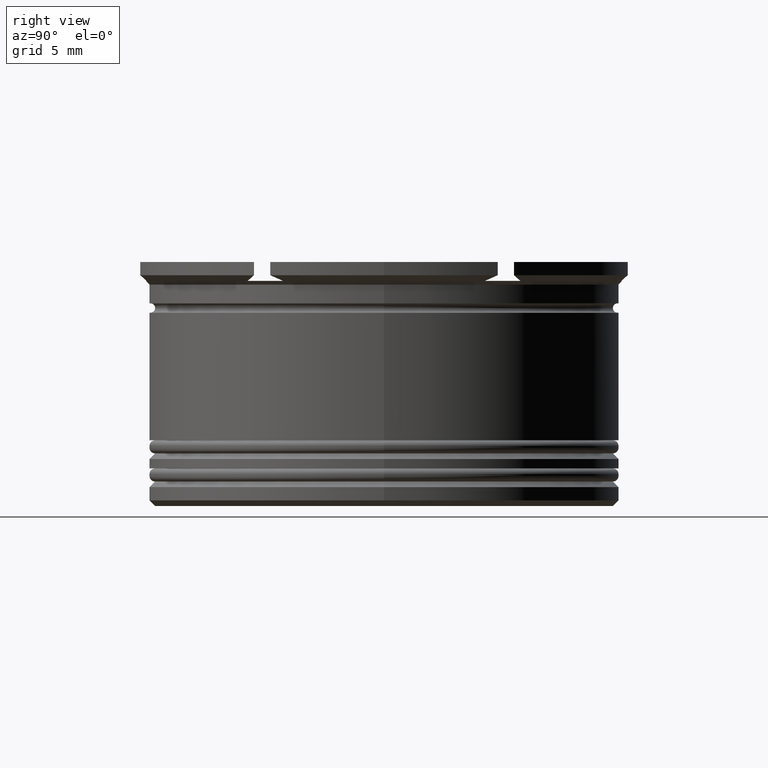
[diagram: clean part render]
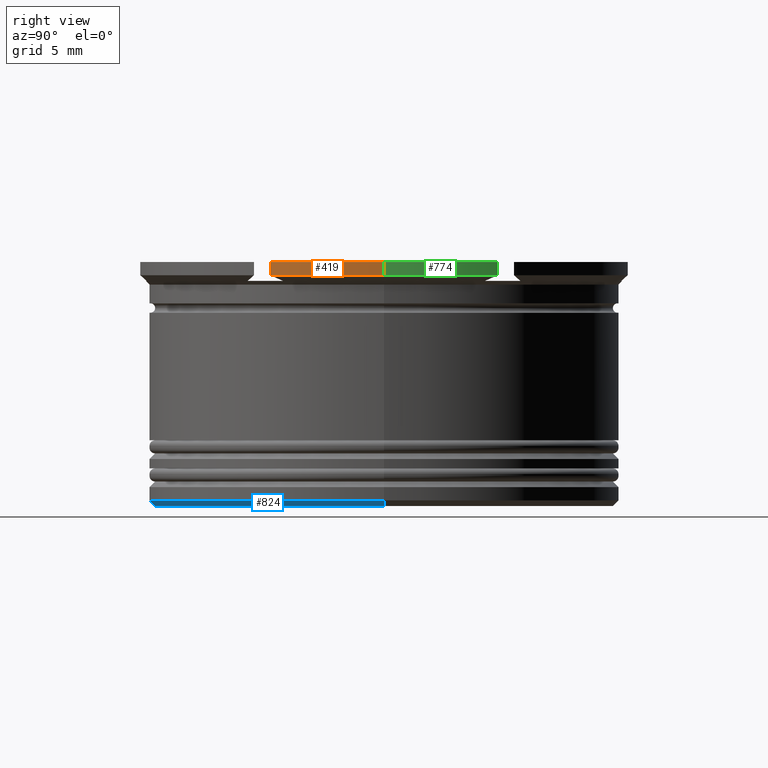
[diagram: same view with three faces highlighted in distinct colors, each labeled with its STEP entity id]
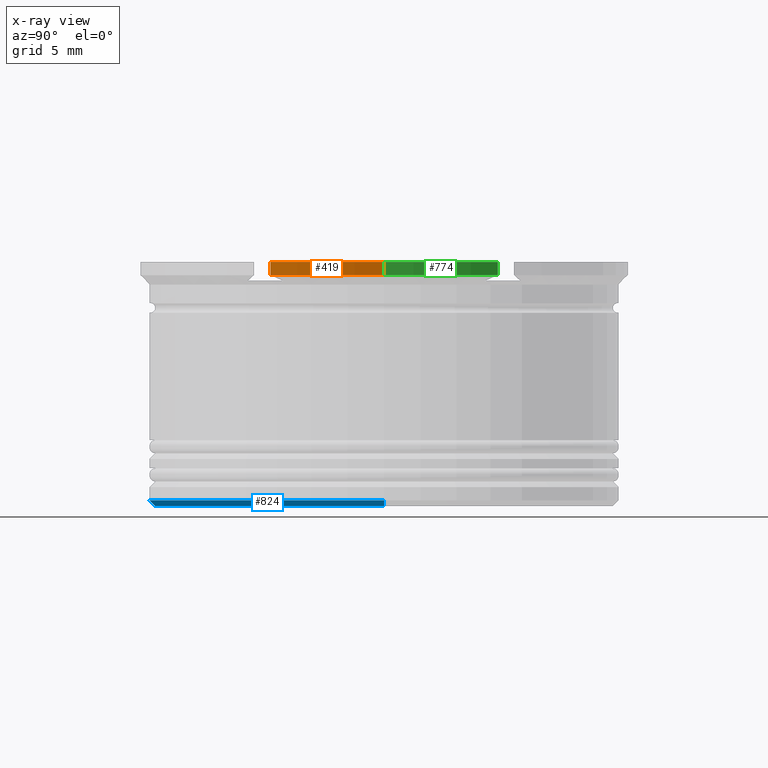
[diagram: x-ray of the same camera — body ghosted, the three highlighted faces saturated]
A machine part, right view with three faces highlighted in distinct colors.
The next image is the same camera in x-ray (body ghosted, the three faces saturated) — at least one of them is partly hidden behind the body in this view.
Their STEP definitions:

[orange] entity #419 — the highlighted cylindrical surface (partial cylindrical patch) has radius 13 mm, axis along (-0, -0, 1).
#128 = VERTEX_POINT ( 'NONE', #1397 ) ;
#174 = CARTESIAN_POINT ( 'NONE',  ( 11.50000000000000000, -6.062177826491065957, 0.000000000000000000 ) ) ;
#185 = CIRCLE ( 'NONE', #2032, 12.99999999999999822 ) ;
#217 = VERTEX_POINT ( 'NONE', #2237 ) ;
#245 = EDGE_CURVE ( 'NONE', #128, #217, #954, .T. ) ;
#327 = VECTOR ( 'NONE', #1140, 1000.000000000000000 ) ;
#364 = AXIS2_PLACEMENT_3D ( 'NONE', #790, #1694, #2055 ) ;
#409 = ORIENTED_EDGE ( 'NONE', *, *, #1777, .F. ) ;
#412 = DIRECTION ( 'NONE',  ( -0.000000000000000000, -0.000000000000000000, 1.000000000000000000 ) ) ;
#419 = ADVANCED_FACE ( 'NONE', ( #1302 ), #764, .T. ) ;
#449 = CARTESIAN_POINT ( 'NONE',  ( 0.000000000000000000, 0.000000000000000000, -0.7000000000000018430 ) ) ;
#464 = CARTESIAN_POINT ( 'NONE',  ( 0.000000000000000000, 0.000000000000000000, 0.000000000000000000 ) ) ;
#465 = ORIENTED_EDGE ( 'NONE', *, *, #1182, .F. ) ;
#493 = EDGE_CURVE ( 'NONE', #782, #128, #753, .T. ) ;
#593 = ORIENTED_EDGE ( 'NONE', *, *, #245, .T. ) ;
#602 = CARTESIAN_POINT ( 'NONE',  ( 11.50000000000000000, -6.062177826491065957, -0.7000000000000018430 ) ) ;
#753 = CIRCLE ( 'NONE', #1679, 12.99999999999999822 ) ;
#764 = CYLINDRICAL_SURFACE ( 'NONE', #364, 12.99999999999999822 ) ;
#777 = ORIENTED_EDGE ( 'NONE', *, *, #493, .T. ) ;
#782 = VERTEX_POINT ( 'NONE', #602 ) ;
#790 = CARTESIAN_POINT ( 'NONE',  ( 0.000000000000000000, 0.000000000000000000, 0.000000000000000000 ) ) ;
#954 = LINE ( 'NONE', #2007, #327 ) ;
#1140 = DIRECTION ( 'NONE',  ( -0.000000000000000000, -0.000000000000000000, 1.000000000000000000 ) ) ;
#1141 = VECTOR ( 'NONE', #1623, 1000.000000000000000 ) ;
#1182 = EDGE_CURVE ( 'NONE', #782, #1925, #1255, .T. ) ;
#1255 = LINE ( 'NONE', #174, #1141 ) ;
#1302 = FACE_OUTER_BOUND ( 'NONE', #1367, .T. ) ;
#1367 = EDGE_LOOP ( 'NONE', ( #777, #593, #409, #465 ) ) ;
#1380 = DIRECTION ( 'NONE',  ( -1.000000000000000000, 3.552713678800500929E-15, 0.000000000000000000 ) ) ;
#1397 = CARTESIAN_POINT ( 'NONE',  ( 12.99999999999999822, 0.000000000000000000, -0.7000000000000018430 ) ) ;
#1623 = DIRECTION ( 'NONE',  ( -0.000000000000000000, -0.000000000000000000, 1.000000000000000000 ) ) ;
#1679 = AXIS2_PLACEMENT_3D ( 'NONE', #449, #1926, #1380 ) ;
#1694 = DIRECTION ( 'NONE',  ( -0.000000000000000000, -0.000000000000000000, 1.000000000000000000 ) ) ;
#1745 = DIRECTION ( 'NONE',  ( 1.000000000000000000, 0.000000000000000000, 0.000000000000000000 ) ) ;
#1769 = CARTESIAN_POINT ( 'NONE',  ( 11.50000000000000000, -6.062177826491065957, 0.000000000000000000 ) ) ;
#1777 = EDGE_CURVE ( 'NONE', #1925, #217, #185, .T. ) ;
#1925 = VERTEX_POINT ( 'NONE', #1769 ) ;
#1926 = DIRECTION ( 'NONE',  ( -0.000000000000000000, -0.000000000000000000, 1.000000000000000000 ) ) ;
#2007 = CARTESIAN_POINT ( 'NONE',  ( 12.99999999999999822, 0.000000000000000000, 0.000000000000000000 ) ) ;
#2032 = AXIS2_PLACEMENT_3D ( 'NONE', #464, #412, #1745 ) ;
#2055 = DIRECTION ( 'NONE',  ( 1.000000000000000000, 0.000000000000000000, 0.000000000000000000 ) ) ;
#2237 = CARTESIAN_POINT ( 'NONE',  ( 12.99999999999999822, 0.000000000000000000, 0.000000000000000000 ) ) ;

[blue] entity #824 — the highlighted conical surface has half-angle 45 deg.
#40 = DIRECTION ( 'NONE',  ( -1.000000000000000000, 0.000000000000000000, 0.000000000000000000 ) ) ;
#149 = CONICAL_SURFACE ( 'NONE', #1215, 12.50000000000000000, 0.7853981633974511656 ) ;
#196 = CARTESIAN_POINT ( 'NONE',  ( 0.000000000000000000, 0.000000000000000000, -12.70000000000000462 ) ) ;
#242 = CARTESIAN_POINT ( 'NONE',  ( 0.000000000000000000, 0.000000000000000000, -12.70000000000000462 ) ) ;
#299 = AXIS2_PLACEMENT_3D ( 'NONE', #784, #950, #40 ) ;
#359 = DIRECTION ( 'NONE',  ( -1.000000000000000000, 0.000000000000000000, 0.000000000000000000 ) ) ;
#445 = VERTEX_POINT ( 'NONE', #561 ) ;
#561 = CARTESIAN_POINT ( 'NONE',  ( 12.20000000000000284, 0.000000000000000000, -13.00000000000000178 ) ) ;
#624 = CARTESIAN_POINT ( 'NONE',  ( 12.50000000000000000, 0.000000000000000000, -12.70000000000000462 ) ) ;
#784 = CARTESIAN_POINT ( 'NONE',  ( 0.000000000000000000, 0.000000000000000000, -13.00000000000000178 ) ) ;
#824 = ADVANCED_FACE ( 'NONE', ( #1097 ), #149, .T. ) ;
#827 = CARTESIAN_POINT ( 'NONE',  ( -12.50000000000000000, 1.530808498934191521E-15, -12.70000000000000462 ) ) ;
#881 = EDGE_CURVE ( 'NONE', #445, #1693, #2026, .T. ) ;
#939 = VERTEX_POINT ( 'NONE', #624 ) ;
#950 = DIRECTION ( 'NONE',  ( 0.000000000000000000, 0.000000000000000000, -1.000000000000000000 ) ) ;
#958 = VECTOR ( 'NONE', #1977, 1000.000000000000114 ) ;
#1049 = ORIENTED_EDGE ( 'NONE', *, *, #881, .F. ) ;
#1071 = ORIENTED_EDGE ( 'NONE', *, *, #2261, .F. ) ;
#1097 = FACE_OUTER_BOUND ( 'NONE', #2265, .T. ) ;
#1215 = AXIS2_PLACEMENT_3D ( 'NONE', #242, #1840, #1525 ) ;
#1218 = AXIS2_PLACEMENT_3D ( 'NONE', #196, #2010, #359 ) ;
#1237 = LINE ( 'NONE', #1813, #958 ) ;
#1285 = CARTESIAN_POINT ( 'NONE',  ( -12.20000000000000284, 1.512438796946981486E-15, -13.00000000000000178 ) ) ;
#1353 = ORIENTED_EDGE ( 'NONE', *, *, #1553, .T. ) ;
#1407 = CARTESIAN_POINT ( 'NONE',  ( -12.50000000000000000, 1.530808498934191521E-15, -12.70000000000000462 ) ) ;
#1419 = VECTOR ( 'NONE', #1543, 1000.000000000000114 ) ;
#1428 = ORIENTED_EDGE ( 'NONE', *, *, #1629, .F. ) ;
#1525 = DIRECTION ( 'NONE',  ( 1.000000000000000000, 0.000000000000000000, 0.000000000000000000 ) ) ;
#1543 = DIRECTION ( 'NONE',  ( -0.7071067811865495711, 8.659560562354957510E-17, 0.7071067811865455743 ) ) ;
#1553 = EDGE_CURVE ( 'NONE', #445, #939, #1237, .T. ) ;
#1562 = LINE ( 'NONE', #1407, #1419 ) ;
#1629 = EDGE_CURVE ( 'NONE', #2286, #939, #2221, .T. ) ;
#1693 = VERTEX_POINT ( 'NONE', #1285 ) ;
#1813 = CARTESIAN_POINT ( 'NONE',  ( 12.50000000000000000, 0.000000000000000000, -12.70000000000000462 ) ) ;
#1840 = DIRECTION ( 'NONE',  ( -0.000000000000000000, -0.000000000000000000, 1.000000000000000000 ) ) ;
#1977 = DIRECTION ( 'NONE',  ( 0.7071067811865495711, 0.000000000000000000, 0.7071067811865455743 ) ) ;
#2010 = DIRECTION ( 'NONE',  ( -0.000000000000000000, -0.000000000000000000, 1.000000000000000000 ) ) ;
#2026 = CIRCLE ( 'NONE', #299, 12.20000000000000284 ) ;
#2221 = CIRCLE ( 'NONE', #1218, 12.50000000000000000 ) ;
#2261 = EDGE_CURVE ( 'NONE', #1693, #2286, #1562, .T. ) ;
#2265 = EDGE_LOOP ( 'NONE', ( #1071, #1049, #1353, #1428 ) ) ;
#2286 = VERTEX_POINT ( 'NONE', #827 ) ;

[green] entity #774 — the highlighted cylindrical surface (partial cylindrical patch) has radius 13 mm, axis along (-0, -0, 1).
#9 = DIRECTION ( 'NONE',  ( -1.000000000000000000, 0.000000000000000000, 0.000000000000000000 ) ) ;
#62 = DIRECTION ( 'NONE',  ( 1.000000000000000000, 0.000000000000000000, 0.000000000000000000 ) ) ;
#124 = CARTESIAN_POINT ( 'NONE',  ( 0.000000000000000000, 0.000000000000000000, 0.000000000000000000 ) ) ;
#128 = VERTEX_POINT ( 'NONE', #1397 ) ;
#135 = EDGE_CURVE ( 'NONE', #1805, #1512, #1973, .T. ) ;
#182 = CARTESIAN_POINT ( 'NONE',  ( 0.000000000000000000, 0.000000000000000000, -0.7000000000000018430 ) ) ;
#189 = CARTESIAN_POINT ( 'NONE',  ( 11.50000000000000000, 6.062177826491065957, 0.000000000000000000 ) ) ;
#217 = VERTEX_POINT ( 'NONE', #2237 ) ;
#245 = EDGE_CURVE ( 'NONE', #128, #217, #954, .T. ) ;
#275 = ORIENTED_EDGE ( 'NONE', *, *, #135, .F. ) ;
#276 = EDGE_CURVE ( 'NONE', #128, #1512, #1443, .T. ) ;
#295 = AXIS2_PLACEMENT_3D ( 'NONE', #124, #2204, #545 ) ;
#327 = VECTOR ( 'NONE', #1140, 1000.000000000000000 ) ;
#368 = EDGE_CURVE ( 'NONE', #217, #1805, #1021, .T. ) ;
#545 = DIRECTION ( 'NONE',  ( 1.000000000000000000, 0.000000000000000000, 0.000000000000000000 ) ) ;
#745 = ORIENTED_EDGE ( 'NONE', *, *, #245, .F. ) ;
#774 = ADVANCED_FACE ( 'NONE', ( #2011 ), #1833, .T. ) ;
#800 = VECTOR ( 'NONE', #914, 1000.000000000000000 ) ;
#914 = DIRECTION ( 'NONE',  ( 0.000000000000000000, 0.000000000000000000, -1.000000000000000000 ) ) ;
#922 = CARTESIAN_POINT ( 'NONE',  ( 0.000000000000000000, 0.000000000000000000, 0.000000000000000000 ) ) ;
#936 = ORIENTED_EDGE ( 'NONE', *, *, #368, .F. ) ;
#954 = LINE ( 'NONE', #2007, #327 ) ;
#1021 = CIRCLE ( 'NONE', #295, 12.99999999999999822 ) ;
#1102 = DIRECTION ( 'NONE',  ( -0.000000000000000000, -0.000000000000000000, 1.000000000000000000 ) ) ;
#1140 = DIRECTION ( 'NONE',  ( -0.000000000000000000, -0.000000000000000000, 1.000000000000000000 ) ) ;
#1217 = CARTESIAN_POINT ( 'NONE',  ( 11.50000000000000000, 6.062177826491065957, -0.7000000000000016209 ) ) ;
#1354 = CARTESIAN_POINT ( 'NONE',  ( 11.50000000000000000, 6.062177826491065957, 0.000000000000000000 ) ) ;
#1397 = CARTESIAN_POINT ( 'NONE',  ( 12.99999999999999822, 0.000000000000000000, -0.7000000000000018430 ) ) ;
#1443 = CIRCLE ( 'NONE', #2212, 12.99999999999999822 ) ;
#1512 = VERTEX_POINT ( 'NONE', #1217 ) ;
#1604 = AXIS2_PLACEMENT_3D ( 'NONE', #922, #1849, #62 ) ;
#1805 = VERTEX_POINT ( 'NONE', #1354 ) ;
#1814 = EDGE_LOOP ( 'NONE', ( #745, #2302, #275, #936 ) ) ;
#1833 = CYLINDRICAL_SURFACE ( 'NONE', #1604, 12.99999999999999822 ) ;
#1849 = DIRECTION ( 'NONE',  ( -0.000000000000000000, -0.000000000000000000, 1.000000000000000000 ) ) ;
#1973 = LINE ( 'NONE', #189, #800 ) ;
#2007 = CARTESIAN_POINT ( 'NONE',  ( 12.99999999999999822, 0.000000000000000000, 0.000000000000000000 ) ) ;
#2011 = FACE_OUTER_BOUND ( 'NONE', #1814, .T. ) ;
#2204 = DIRECTION ( 'NONE',  ( -0.000000000000000000, -0.000000000000000000, 1.000000000000000000 ) ) ;
#2212 = AXIS2_PLACEMENT_3D ( 'NONE', #182, #1102, #9 ) ;
#2237 = CARTESIAN_POINT ( 'NONE',  ( 12.99999999999999822, 0.000000000000000000, 0.000000000000000000 ) ) ;
#2302 = ORIENTED_EDGE ( 'NONE', *, *, #276, .T. ) ;